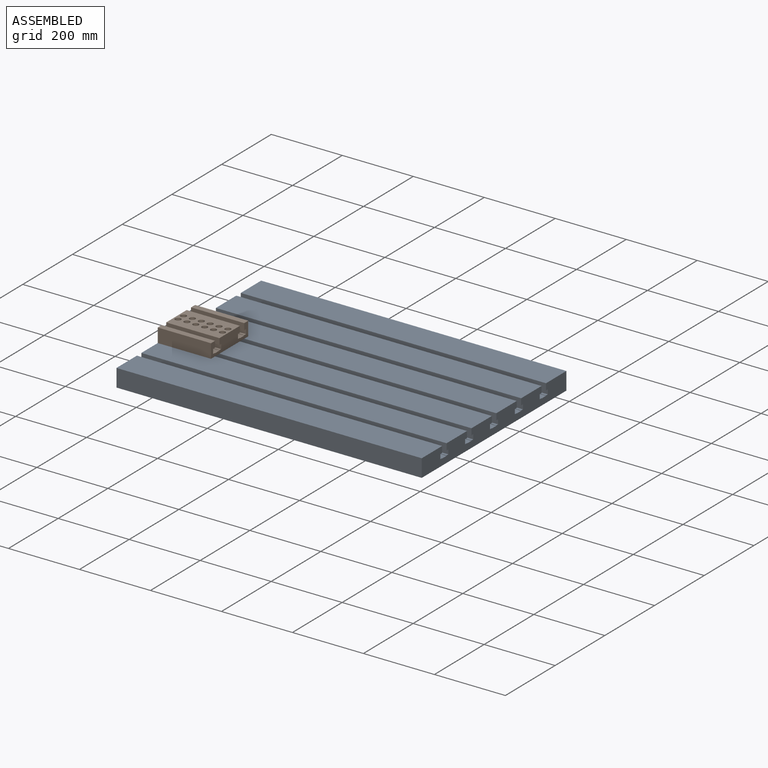
[diagram: assembled view]
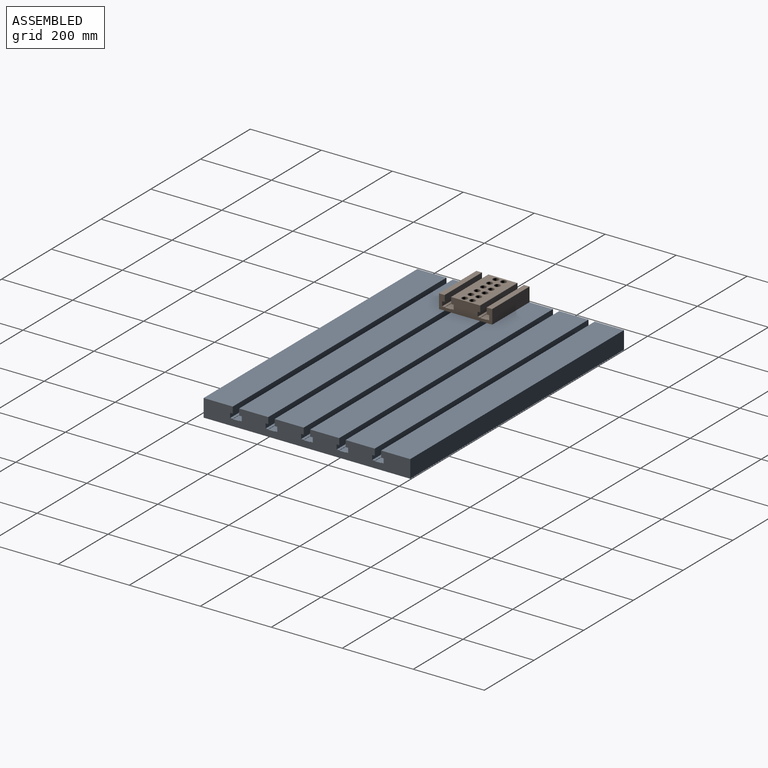
[diagram: assembled view, second angle]
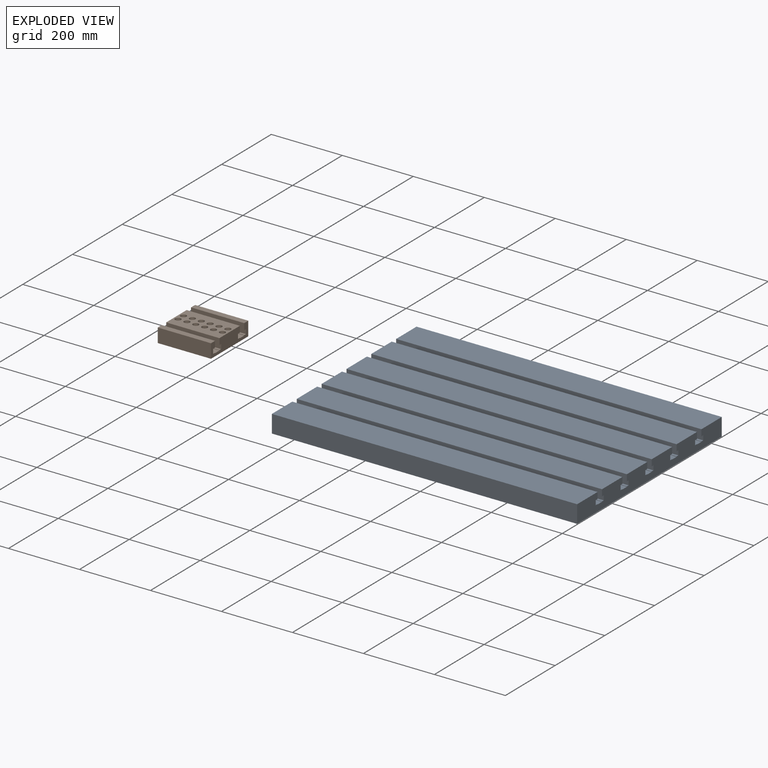
[diagram: exploded view]
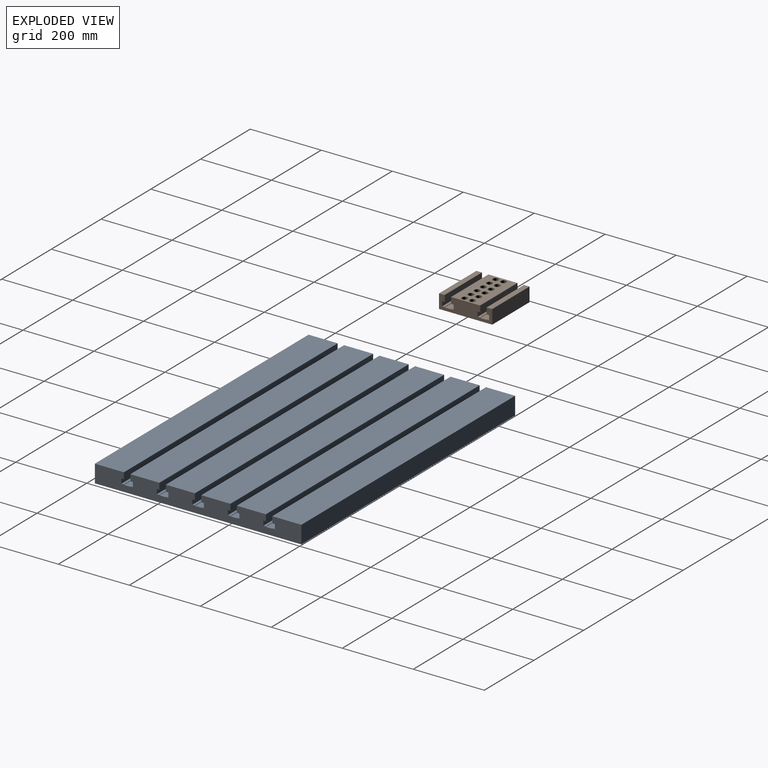
[diagram: exploded view, second angle]
ASSEMBLY  parts=2 mates=2
PART A: 110 faces, bbox 860x582x50 mm
  f0: plane 82x32mm, normal (1,0,0), area 2529.8mm2, adj f1,f2,f3,f4,f5,f6,f7,f8
  f1: plane 860x7.25mm, normal (0,0,1), area 6235mm2, adj f0,f2,f8,f9
  f2: plane 860x13mm, normal (0,1,0), area 11180mm2, adj f0,f1,f3,f9
  f3: plane 860x7.25mm, normal (0,0,-1), area 6235mm2, adj f0,f2,f4,f9
  f4: plane 860x18mm, normal (0,1,0), area 15480mm2, adj f0,f3,f5,f9
  f5: plane 860x82mm, normal (0,0,1), area 70520mm2, adj f0,f4,f6,f9
  f6: plane 860x32mm, normal (0,-1,0), area 27520mm2, adj f0,f5,f9,f10
  f7: plane 82x18mm, normal (1,0,0), area 1476mm2, adj f0,f10,f12,f14
  f8: plane 860x1mm, normal (0,1,0), area 860mm2, adj f0,f1,f9,f15
  f9: plane 82x32mm, normal (-1,0,0), area 2529.8mm2, adj f1,f2,f3,f4,f5,f6,f8,f16
  f10: plane 860x18mm, normal (0,-1,0), area 15480mm2, adj f6,f7,f12,f16
  f11: plane 860x1mm, normal (0,-1,0), area 860mm2, adj f13,f15,f25,f30
  f12: plane 860x82mm, normal (0,0,-1), area 70520mm2, adj f7,f10,f16,f26
  f13: plane 82x32mm, normal (1,0,0), area 2435.5mm2, adj f11,f17,f18,f19,f20,f21,f22,f23
  f14: plane 18x18mm, normal (1,0,0), area 324mm2, adj f7,f15,f26,f27
  f15: plane 860x18mm, normal (0,0,1), area 15480mm2, adj f8,f11,f14,f29
  f16: plane 82x18mm, normal (-1,0,0), area 1476mm2, adj f9,f10,f12,f29
  f17: plane 860x7.25mm, normal (0,0,1), area 6235mm2, adj f13,f18,f28,f30
  f18: plane 860x13mm, normal (0,1,0), area 11180mm2, adj f13,f17,f19,f30
  f19: plane 860x7.25mm, normal (0,0,-1), area 6235mm2, adj f13,f18,f20,f30
  f20: plane 860x18mm, normal (0,1,0), area 15480mm2, adj f13,f19,f21,f30
  f21: plane 860x82mm, normal (0,0,1), area 70520mm2, adj f13,f20,f22,f30
  f22: plane 860x18mm, normal (0,-1,0), area 15480mm2, adj f13,f21,f23,f30
  f23: plane 860x7.25mm, normal (0,0,-1), area 6235mm2, adj f13,f22,f24,f30
  f24: plane 860x13mm, normal (0,-1,0), area 11180mm2, adj f13,f23,f25,f30
  f25: plane 860x7.25mm, normal (0,0,1), area 6235mm2, adj f11,f13,f24,f30
  f26: plane 860x18mm, normal (0,0,-1), area 15480mm2, adj f12,f14,f29,f32
  f27: plane 82x18mm, normal (1,0,0), area 1476mm2, adj f13,f14,f32,f33
  f28: plane 860x1mm, normal (0,1,0), area 860mm2, adj f13,f17,f30,f35
  f29: plane 18x18mm, normal (-1,0,0), area 324mm2, adj f15,f16,f26,f36
  f30: plane 82x32mm, normal (-1,0,0), area 2435.5mm2, adj f11,f17,f18,f19,f20,f21,f22,f23
  f31: plane 860x1mm, normal (0,-1,0), area 860mm2, adj f34,f35,f45,f51
  f32: plane 860x82mm, normal (0,0,-1), area 70520mm2, adj f26,f27,f36,f46
  f33: plane 18x18mm, normal (1,0,0), area 324mm2, adj f27,f35,f46,f47
  f34: plane 82x32mm, normal (1,0,0), area 2435.5mm2, adj f31,f37,f38,f39,f40,f41,f42,f43
  f35: plane 860x18mm, normal (0,0,1), area 15480mm2, adj f28,f31,f33,f50
  f36: plane 82x18mm, normal (-1,0,0), area 1476mm2, adj f29,f30,f32,f50
  f37: plane 860x7.25mm, normal (0,0,1), area 6235mm2, adj f34,f38,f49,f51
  f38: plane 860x13mm, normal (0,1,0), area 11180mm2, adj f34,f37,f39,f51
  f39: plane 860x7.25mm, normal (0,0,-1), area 6235mm2, adj f34,f38,f40,f51
  f40: plane 860x18mm, normal (0,1,0), area 15480mm2, adj f34,f39,f41,f51
  f41: plane 860x82mm, normal (0,0,1), area 70520mm2, adj f34,f40,f42,f51
  f42: plane 860x18mm, normal (0,-1,0), area 15480mm2, adj f34,f41,f43,f51
  f43: plane 860x7.25mm, normal (0,0,-1), area 6235mm2, adj f34,f42,f44,f51
  f44: plane 860x13mm, normal (0,-1,0), area 11180mm2, adj f34,f43,f45,f51
  f45: plane 860x7.25mm, normal (0,0,1), area 6235mm2, adj f31,f34,f44,f51
  f46: plane 860x18mm, normal (0,0,-1), area 15480mm2, adj f32,f33,f50,f52
  f47: plane 82x18mm, normal (1,0,0), area 1476mm2, adj f33,f34,f52,f54
  f48: plane 860x1mm, normal (0,-1,0), area 860mm2, adj f53,f64,f65,f77
  f49: plane 860x1mm, normal (0,1,0), area 860mm2, adj f34,f37,f51,f65
  f50: plane 18x18mm, normal (-1,0,0), area 324mm2, adj f35,f36,f46,f66
  f51: plane 82x32mm, normal (-1,0,0), area 2435.5mm2, adj f31,f37,f38,f39,f40,f41,f42,f43
  f52: plane 860x82mm, normal (0,0,-1), area 70520mm2, adj f46,f47,f66,f67
  f53: plane 82x32mm, normal (1,0,0), area 2435.5mm2, adj f48,f56,f57,f58,f59,f60,f61,f62
  f54: plane 18x18mm, normal (1,0,0), area 324mm2, adj f47,f65,f67,f68
  f55: plane 82x32mm, normal (1,0,0), area 2529.8mm2, adj f69,f70,f71,f72,f73,f74,f75,f84
  f56: plane 860x7.25mm, normal (0,0,1), area 6235mm2, adj f53,f57,f76,f77
  f57: plane 860x13mm, normal (0,1,0), area 11180mm2, adj f53,f56,f58,f77
  f58: plane 860x7.25mm, normal (0,0,-1), area 6235mm2, adj f53,f57,f59,f77
  f59: plane 860x18mm, normal (0,1,0), area 15480mm2, adj f53,f58,f60,f77
  f60: plane 860x82mm, normal (0,0,1), area 70520mm2, adj f53,f59,f61,f77
  f61: plane 860x18mm, normal (0,-1,0), area 15480mm2, adj f53,f60,f62,f77
  f62: plane 860x7.25mm, normal (0,0,-1), area 6235mm2, adj f53,f61,f63,f77
  f63: plane 860x13mm, normal (0,-1,0), area 11180mm2, adj f53,f62,f64,f77
  f64: plane 860x7.25mm, normal (0,0,1), area 6235mm2, adj f48,f53,f63,f77
  f65: plane 860x18mm, normal (0,0,1), area 15480mm2, adj f48,f49,f54,f78
  f66: plane 82x18mm, normal (-1,0,0), area 1476mm2, adj f50,f51,f52,f78
  f67: plane 860x18mm, normal (0,0,-1), area 15480mm2, adj f52,f54,f78,f79
  f68: plane 82x18mm, normal (1,0,0), area 1476mm2, adj f53,f54,f79,f80
  f69: plane 860x32mm, normal (0,1,0), area 27520mm2, adj f55,f70,f82,f83
  f70: plane 860x82mm, normal (0,0,1), area 70520mm2, adj f55,f69,f71,f83
  f71: plane 860x18mm, normal (0,-1,0), area 15480mm2, adj f55,f70,f72,f83
  f72: plane 860x7.25mm, normal (0,0,-1), area 6235mm2, adj f55,f71,f73,f83
  f73: plane 860x13mm, normal (0,-1,0), area 11180mm2, adj f55,f72,f74,f83
  f74: plane 860x7.25mm, normal (0,0,1), area 6235mm2, adj f55,f73,f83,f84
  f75: plane 82x18mm, normal (1,0,0), area 1476mm2, adj f55,f81,f82,f85
  f76: plane 860x1mm, normal (0,1,0), area 860mm2, adj f53,f56,f77,f89
  f77: plane 82x32mm, normal (-1,0,0), area 2435.5mm2, adj f48,f56,f57,f58,f59,f60,f61,f62
  f78: plane 18x18mm, normal (-1,0,0), area 324mm2, adj f65,f66,f67,f90
  f79: plane 860x82mm, normal (0,0,-1), area 70520mm2, adj f67,f68,f90,f91
  f80: plane 18x18mm, normal (1,0,0), area 324mm2, adj f68,f89,f91,f92
  f81: plane 860x82mm, normal (0,0,-1), area 70520mm2, adj f75,f82,f93,f94
  f82: plane 860x18mm, normal (0,1,0), area 15480mm2, adj f69,f75,f81,f94
  f83: plane 82x32mm, normal (-1,0,0), area 2529.8mm2, adj f69,f70,f71,f72,f73,f74,f84,f94
  f84: plane 860x1mm, normal (0,-1,0), area 860mm2, adj f55,f74,f83,f95
  f85: plane 18x18mm, normal (1,0,0), area 324mm2, adj f75,f92,f93,f95
  f86: plane 860x1mm, normal (0,1,0), area 860mm2, adj f87,f95,f96,f108
  f87: plane 82x32mm, normal (1,0,0), area 2435.5mm2, adj f86,f88,f92,f96,f97,f98,f99,f100
  f88: plane 860x1mm, normal (0,-1,0), area 860mm2, adj f87,f89,f104,f108
  f89: plane 860x18mm, normal (0,0,1), area 15480mm2, adj f76,f80,f88,f105
  f90: plane 82x18mm, normal (-1,0,0), area 1476mm2, adj f77,f78,f79,f105
  f91: plane 860x18mm, normal (0,0,-1), area 15480mm2, adj f79,f80,f105,f106
  f92: plane 82x18mm, normal (1,0,0), area 1476mm2, adj f80,f85,f87,f106
  f93: plane 860x18mm, normal (0,0,-1), area 15480mm2, adj f81,f85,f106,f107
  f94: plane 82x18mm, normal (-1,0,0), area 1476mm2, adj f81,f82,f83,f107
  f95: plane 860x18mm, normal (0,0,1), area 15480mm2, adj f84,f85,f86,f107
  f96: plane 860x7.25mm, normal (0,0,1), area 6235mm2, adj f86,f87,f97,f108
  f97: plane 860x13mm, normal (0,1,0), area 11180mm2, adj f87,f96,f98,f108
  f98: plane 860x7.25mm, normal (0,0,-1), area 6235mm2, adj f87,f97,f99,f108
  f99: plane 860x18mm, normal (0,1,0), area 15480mm2, adj f87,f98,f100,f108
  f100: plane 860x82mm, normal (0,0,1), area 70520mm2, adj f87,f99,f101,f108
  f101: plane 860x18mm, normal (0,-1,0), area 15480mm2, adj f87,f100,f102,f108
  f102: plane 860x7.25mm, normal (0,0,-1), area 6235mm2, adj f87,f101,f103,f108
  f103: plane 860x13mm, normal (0,-1,0), area 11180mm2, adj f87,f102,f104,f108
  f104: plane 860x7.25mm, normal (0,0,1), area 6235mm2, adj f87,f88,f103,f108
  f105: plane 18x18mm, normal (-1,0,0), area 324mm2, adj f89,f90,f91,f109
  f106: plane 860x82mm, normal (0,0,-1), area 70520mm2, adj f91,f92,f93,f109
  f107: plane 18x18mm, normal (-1,0,0), area 324mm2, adj f93,f94,f95,f109
  f108: plane 82x32mm, normal (-1,0,0), area 2435.5mm2, adj f86,f88,f96,f97,f98,f99,f100,f101
  f109: plane 82x18mm, normal (-1,0,0), area 1476mm2, adj f105,f106,f107,f108
PART B: 66 faces, bbox 150x150x40 mm
  f0: plane 149x81mm, normal (0,0,1), area 9345.2mm2, adj f42,f43,f44,f45,f46,f47,f48,f49
  f1: plane 149x15mm, normal (0,0,1), area 2235mm2, adj f54,f55,f56,f57
  f2: plane 150x39.5mm, normal (1,0,0), area 4414mm2, adj f4,f6,f7,f20,f21,f22,f23,f24
  f3: plane 149x15mm, normal (0,0,1), area 2235mm2, adj f62,f63,f64,f65
  f4: plane 150x150mm, normal (0,0,-1), area 20087.3mm2, adj f2,f5,f6,f7,f8,f9,f10,f11
  f5: plane 150x39.5mm, normal (-1,0,0), area 4414mm2, adj f4,f6,f7,f20,f21,f22,f23,f24
  f6: plane 150x39.5mm, normal (0,-1,0), area 5925mm2, adj f2,f4,f5,f56
  f7: plane 150x39.5mm, normal (0,1,0), area 5925mm2, adj f2,f4,f5,f63
  f8: cylinder r=8mm len=39.5mm, axis (0,0,1), area 1985.5mm2, adj f4,f43
  f9: cylinder r=8mm len=39.5mm, axis (0,0,1), area 1985.5mm2, adj f4,f42
  f10: cylinder r=8mm len=39.5mm, axis (0,0,1), area 1985.5mm2, adj f4,f45
  f11: cylinder r=8mm len=39.5mm, axis (0,0,1), area 1985.5mm2, adj f4,f46
  f12: cylinder r=8mm len=39.5mm, axis (0,0,1), area 1985.5mm2, adj f4,f44
  f13: cylinder r=8mm len=39.5mm, axis (0,0,1), area 1985.5mm2, adj f4,f47
  f14: cylinder r=8mm len=39.5mm, axis (0,0,1), area 1985.5mm2, adj f4,f48
  f15: cylinder r=8mm len=39.5mm, axis (0,0,1), area 1985.5mm2, adj f4,f51
  f16: cylinder r=8mm len=39.5mm, axis (0,0,1), area 1985.5mm2, adj f4,f52
  f17: cylinder r=8mm len=39.5mm, axis (0,0,1), area 1985.5mm2, adj f4,f53
  f18: cylinder r=8mm len=39.5mm, axis (0,0,1), area 1985.5mm2, adj f4,f50
  f19: cylinder r=8mm len=39.5mm, axis (0,0,1), area 1985.5mm2, adj f4,f49
  f20: plane 150x7.25mm, normal (0,0,-1), area 1087.5mm2, adj f2,f5,f21,f30
  f21: plane 150x17.5mm, normal (0,1,0), area 2625mm2, adj f2,f5,f20,f55
  f22: plane 150x17.5mm, normal (0,-1,0), area 2625mm2, adj f2,f5,f23,f61
  f23: plane 150x7.25mm, normal (0,0,-1), area 1087.5mm2, adj f2,f5,f22,f24
  f24: plane 150x13mm, normal (0,-1,0), area 1950mm2, adj f2,f5,f23,f25
  f25: plane 150x7.25mm, normal (0,0,1), area 1087.5mm2, adj f2,f5,f24,f26
  f26: plane 150x1mm, normal (0,-1,0), area 150mm2, adj f2,f5,f25,f27
  f27: plane 150x18mm, normal (0,0,1), area 2700mm2, adj f2,f5,f26,f28
  f28: plane 150x1mm, normal (0,1,0), area 150mm2, adj f2,f5,f27,f29
  f29: plane 150x7.25mm, normal (0,0,1), area 1087.5mm2, adj f2,f5,f28,f30
  f30: plane 150x13mm, normal (0,1,0), area 1950mm2, adj f2,f5,f20,f29
  f31: plane 150x17.5mm, normal (0,-1,0), area 2625mm2, adj f2,f5,f32,f64
  f32: plane 150x7.25mm, normal (0,0,-1), area 1087.5mm2, adj f2,f5,f31,f33
  f33: plane 150x13mm, normal (0,-1,0), area 1950mm2, adj f2,f5,f32,f34
  f34: plane 150x7.25mm, normal (0,0,1), area 1087.5mm2, adj f2,f5,f33,f35
  f35: plane 150x1mm, normal (0,-1,0), area 150mm2, adj f2,f5,f34,f36
  f36: plane 150x18mm, normal (0,0,1), area 2700mm2, adj f2,f5,f35,f37
  f37: plane 150x1mm, normal (0,1,0), area 150mm2, adj f2,f5,f36,f38
  f38: plane 150x7.25mm, normal (0,0,1), area 1087.5mm2, adj f2,f5,f37,f39
  f39: plane 150x13mm, normal (0,1,0), area 1950mm2, adj f2,f5,f38,f40
  f40: plane 150x7.25mm, normal (0,0,-1), area 1087.5mm2, adj f2,f5,f39,f41
  f41: plane 150x17.5mm, normal (0,1,0), area 2625mm2, adj f2,f5,f40,f58
  f42: cone r=8.5mm half-angle=45deg, axis (0,0,1), area 36.7mm2, adj f0,f9
  f43: cone r=8mm half-angle=45deg, axis (0,0,1), area 36.7mm2, adj f0,f8
  f44: cone r=8mm half-angle=45deg, axis (0,0,1), area 36.7mm2, adj f0,f12
  f45: cone r=8.5mm half-angle=45deg, axis (0,0,1), area 36.7mm2, adj f0,f10
  f46: cone r=8.5mm half-angle=45deg, axis (0,0,1), area 36.7mm2, adj f0,f11
  f47: cone r=8mm half-angle=45deg, axis (0,0,1), area 36.7mm2, adj f0,f13
  f48: cone r=8mm half-angle=45deg, axis (0,0,1), area 36.7mm2, adj f0,f14
  f49: cone r=8.5mm half-angle=45deg, axis (0,0,1), area 36.7mm2, adj f0,f19
  f50: cone r=8.5mm half-angle=45deg, axis (0,0,1), area 36.7mm2, adj f0,f18
  f51: cone r=8mm half-angle=45deg, axis (0,0,1), area 36.7mm2, adj f0,f15
  f52: cone r=8mm half-angle=45deg, axis (0,0,1), area 36.7mm2, adj f0,f16
  f53: cone r=8.5mm half-angle=45deg, axis (0,0,1), area 36.7mm2, adj f0,f17
  f54: plane 16x0.5mm, normal (-0.71,0,0.71), area 11mm2, adj f1,f5,f55,f56
  f55: plane 150x0.5mm, normal (0,0.71,0.71), area 105.7mm2, adj f1,f21,f54,f57
  f56: plane 150x0.5mm, normal (0,-0.71,0.71), area 105.7mm2, adj f1,f6,f54,f57
  f57: plane 16x0.5mm, normal (0.71,0,0.71), area 11mm2, adj f1,f2,f55,f56
  f58: plane 150x0.5mm, normal (0,0.71,0.71), area 105.7mm2, adj f0,f41,f59,f60
  f59: plane 82x0.5mm, normal (0.71,0,0.71), area 57.6mm2, adj f0,f2,f58,f61
  f60: plane 82x0.5mm, normal (-0.71,0,0.71), area 57.6mm2, adj f0,f5,f58,f61
  f61: plane 150x0.5mm, normal (0,-0.71,0.71), area 105.7mm2, adj f0,f22,f59,f60
  f62: plane 16x0.5mm, normal (-0.71,0,0.71), area 11mm2, adj f3,f5,f63,f64
  f63: plane 150x0.5mm, normal (0,0.71,0.71), area 105.7mm2, adj f3,f7,f62,f65
  f64: plane 150x0.5mm, normal (0,-0.71,0.71), area 105.7mm2, adj f3,f31,f62,f65
  f65: plane 16x0.5mm, normal (0.71,0,0.71), area 11mm2, adj f2,f3,f63,f64
PLACE A t=(-80.28,126,-88.86)mm fixed
PLACE B t=(-5.28,76,-88.86)mm
MATE planar B.f5 <-> A.f51  axis (-1,0,0) through (-80.28,76,-69.78)mm
MATE planar B.f4 <-> A.f41  axis (0,0,-1) through (-5.28,76,-88.86)mm
